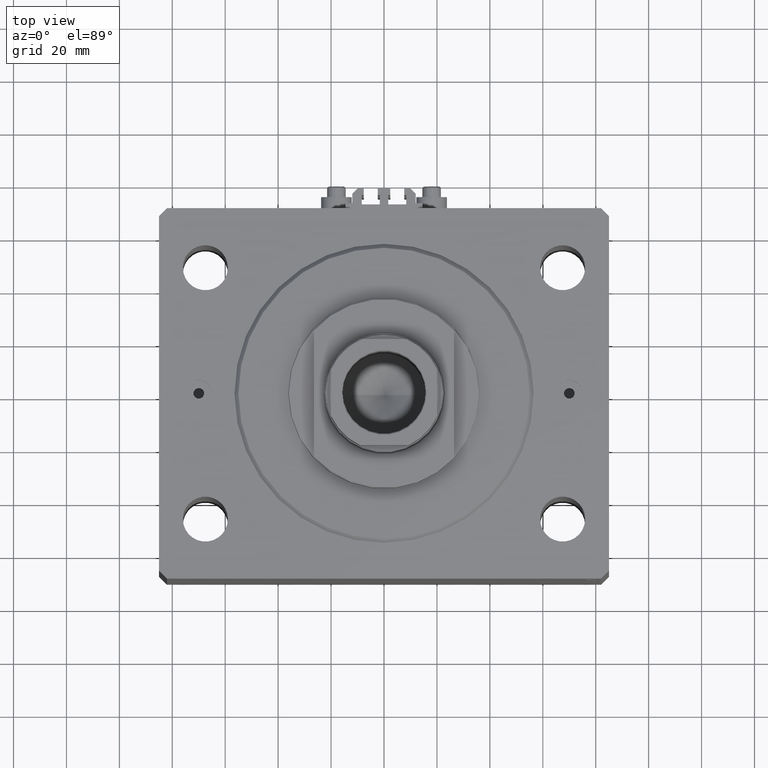
[diagram: clean part render]
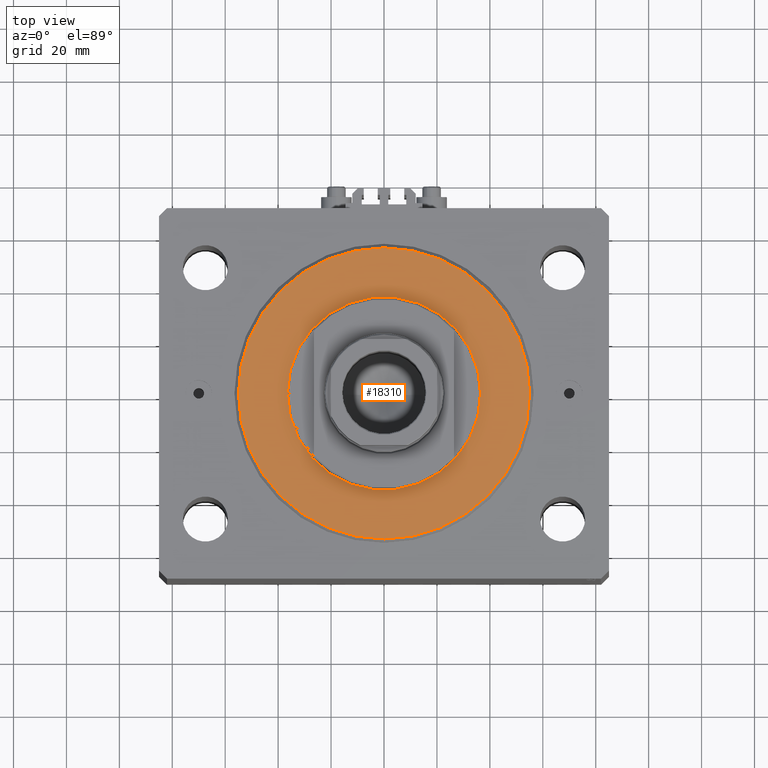
[diagram: same view with one face highlighted and labeled with its STEP entity id]
A machine part, top view. The second image highlights one B-rep face of the part: STEP entity #18310.
In plain terms, the highlighted planar face has unit normal (0, 0, -1).
Its self-contained STEP definition (entity closure, byte-faithful):
#1149 = AXIS2_PLACEMENT_3D ( 'NONE', #29941, #5136, #12521 ) ;
#2750 = VERTEX_POINT ( 'NONE', #38249 ) ;
#3919 = DIRECTION ( 'NONE',  ( -0.000000000000000000, -0.000000000000000000, -1.000000000000000000 ) ) ;
#5136 = DIRECTION ( 'NONE',  ( 0.000000000000000000, 0.000000000000000000, 1.000000000000000000 ) ) ;
#5484 = AXIS2_PLACEMENT_3D ( 'NONE', #24105, #9333, #5996 ) ;
#5996 = DIRECTION ( 'NONE',  ( 1.000000000000000000, 0.000000000000000000, -0.000000000000000000 ) ) ;
#6138 = DIRECTION ( 'NONE',  ( -0.000000000000000000, -0.000000000000000000, -1.000000000000000000 ) ) ;
#8295 = AXIS2_PLACEMENT_3D ( 'NONE', #13778, #6138, #24248 ) ;
#9230 = VERTEX_POINT ( 'NONE', #34162 ) ;
#9333 = DIRECTION ( 'NONE',  ( 0.000000000000000000, 0.000000000000000000, 1.000000000000000000 ) ) ;
#10281 = VERTEX_POINT ( 'NONE', #23340 ) ;
#11583 = CIRCLE ( 'NONE', #24536, 36.50000000000000000 ) ;
#11905 = ORIENTED_EDGE ( 'NONE', *, *, #18515, .T. ) ;
#12521 = DIRECTION ( 'NONE',  ( 1.000000000000000000, 0.000000000000000000, 0.000000000000000000 ) ) ;
#13415 = EDGE_LOOP ( 'NONE', ( #11905, #43753 ) ) ;
#13778 = CARTESIAN_POINT ( 'NONE',  ( 0.000000000000000000, 0.000000000000000000, 0.000000000000000000 ) ) ;
#18310 = ADVANCED_FACE ( 'NONE', ( #45634, #42287 ), #45174, .F. ) ;
#18515 = EDGE_CURVE ( 'NONE', #42735, #10281, #11583, .T. ) ;
#18878 = CARTESIAN_POINT ( 'NONE',  ( 36.50000000000000000, 0.000000000000000000, -2.168404344971008868E-16 ) ) ;
#20293 = EDGE_CURVE ( 'NONE', #2750, #9230, #32223, .T. ) ;
#21261 = CIRCLE ( 'NONE', #8295, 55.00000000000002132 ) ;
#23340 = CARTESIAN_POINT ( 'NONE',  ( -36.50000000000000000, 4.469960816887838430E-15, -2.168404344971008868E-16 ) ) ;
#24105 = CARTESIAN_POINT ( 'NONE',  ( 0.000000000000000000, 0.000000000000000000, 0.000000000000000000 ) ) ;
#24248 = DIRECTION ( 'NONE',  ( 1.000000000000000000, 0.000000000000000000, 0.000000000000000000 ) ) ;
#24536 = AXIS2_PLACEMENT_3D ( 'NONE', #33175, #36550, #29114 ) ;
#25519 = CIRCLE ( 'NONE', #1149, 36.50000000000000000 ) ;
#29114 = DIRECTION ( 'NONE',  ( 1.000000000000000000, 0.000000000000000000, 0.000000000000000000 ) ) ;
#29663 = DIRECTION ( 'NONE',  ( 1.000000000000000000, 0.000000000000000000, 0.000000000000000000 ) ) ;
#29862 = EDGE_CURVE ( 'NONE', #10281, #42735, #25519, .T. ) ;
#29941 = CARTESIAN_POINT ( 'NONE',  ( 0.000000000000000000, 0.000000000000000000, 0.000000000000000000 ) ) ;
#31539 = EDGE_LOOP ( 'NONE', ( #31679, #36518 ) ) ;
#31679 = ORIENTED_EDGE ( 'NONE', *, *, #45738, .T. ) ;
#32223 = CIRCLE ( 'NONE', #45223, 55.00000000000002132 ) ;
#33175 = CARTESIAN_POINT ( 'NONE',  ( 0.000000000000000000, 0.000000000000000000, 0.000000000000000000 ) ) ;
#34162 = CARTESIAN_POINT ( 'NONE',  ( 55.00000000000002132, 0.000000000000000000, 0.000000000000000000 ) ) ;
#36518 = ORIENTED_EDGE ( 'NONE', *, *, #20293, .T. ) ;
#36550 = DIRECTION ( 'NONE',  ( 0.000000000000000000, 0.000000000000000000, 1.000000000000000000 ) ) ;
#36621 = CARTESIAN_POINT ( 'NONE',  ( 0.000000000000000000, 0.000000000000000000, 0.000000000000000000 ) ) ;
#38249 = CARTESIAN_POINT ( 'NONE',  ( -55.00000000000002132, 6.827405905246496343E-15, 0.000000000000000000 ) ) ;
#42287 = FACE_OUTER_BOUND ( 'NONE', #31539, .T. ) ;
#42735 = VERTEX_POINT ( 'NONE', #18878 ) ;
#43753 = ORIENTED_EDGE ( 'NONE', *, *, #29862, .T. ) ;
#45174 = PLANE ( 'NONE',  #5484 ) ;
#45223 = AXIS2_PLACEMENT_3D ( 'NONE', #36621, #3919, #29663 ) ;
#45634 = FACE_BOUND ( 'NONE', #13415, .T. ) ;
#45738 = EDGE_CURVE ( 'NONE', #9230, #2750, #21261, .T. ) ;